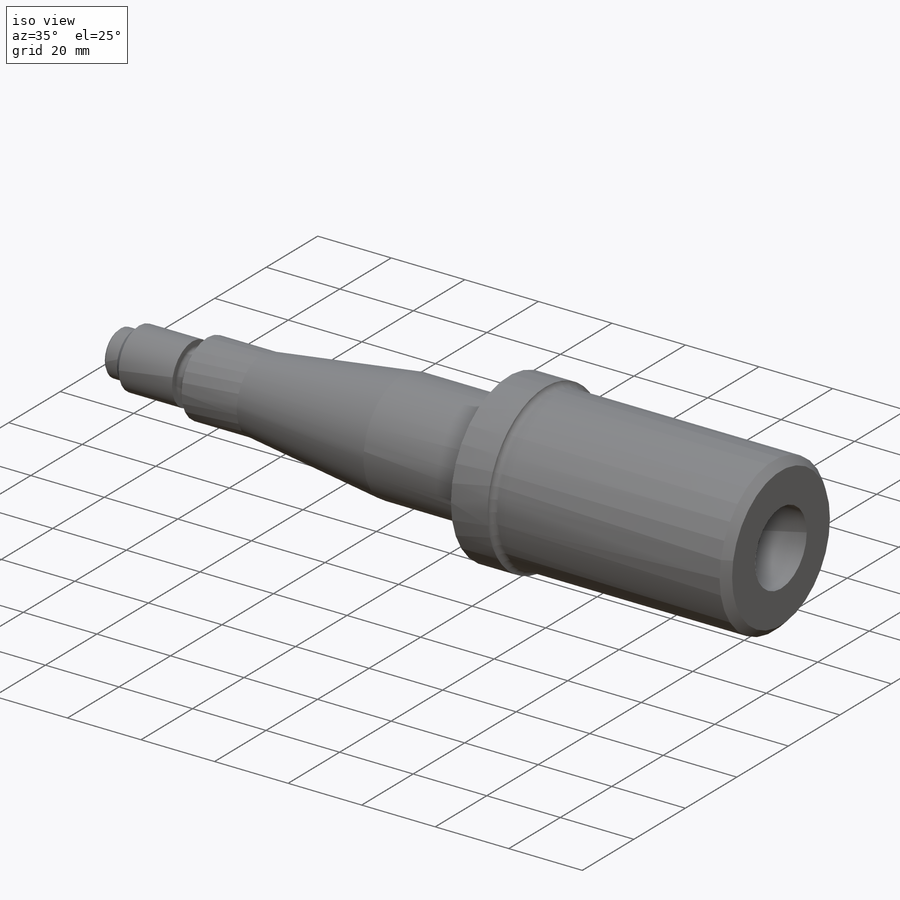
[diagram: iso view]
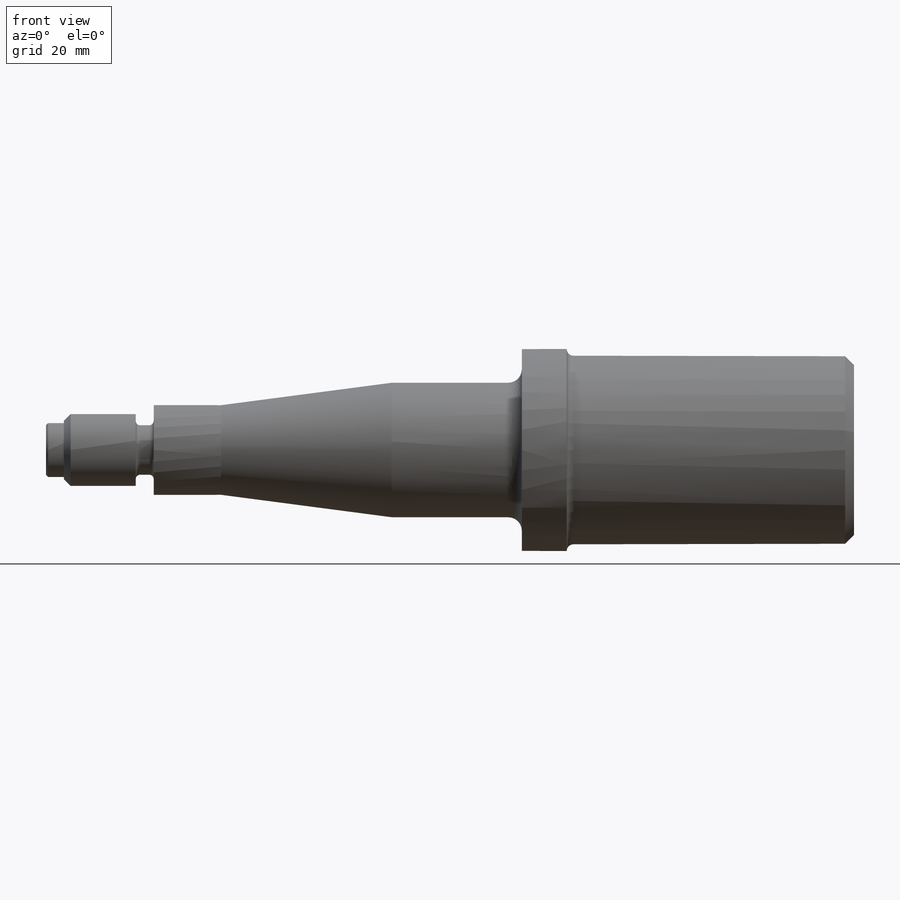
[diagram: front view]
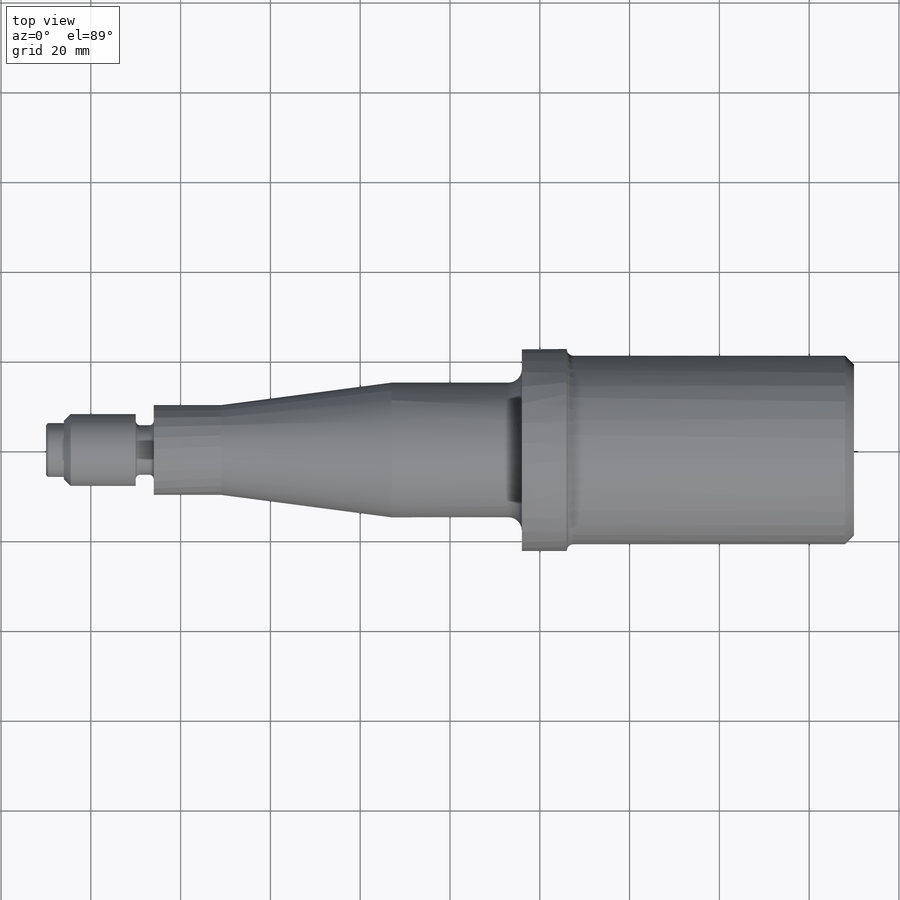
[diagram: top view]
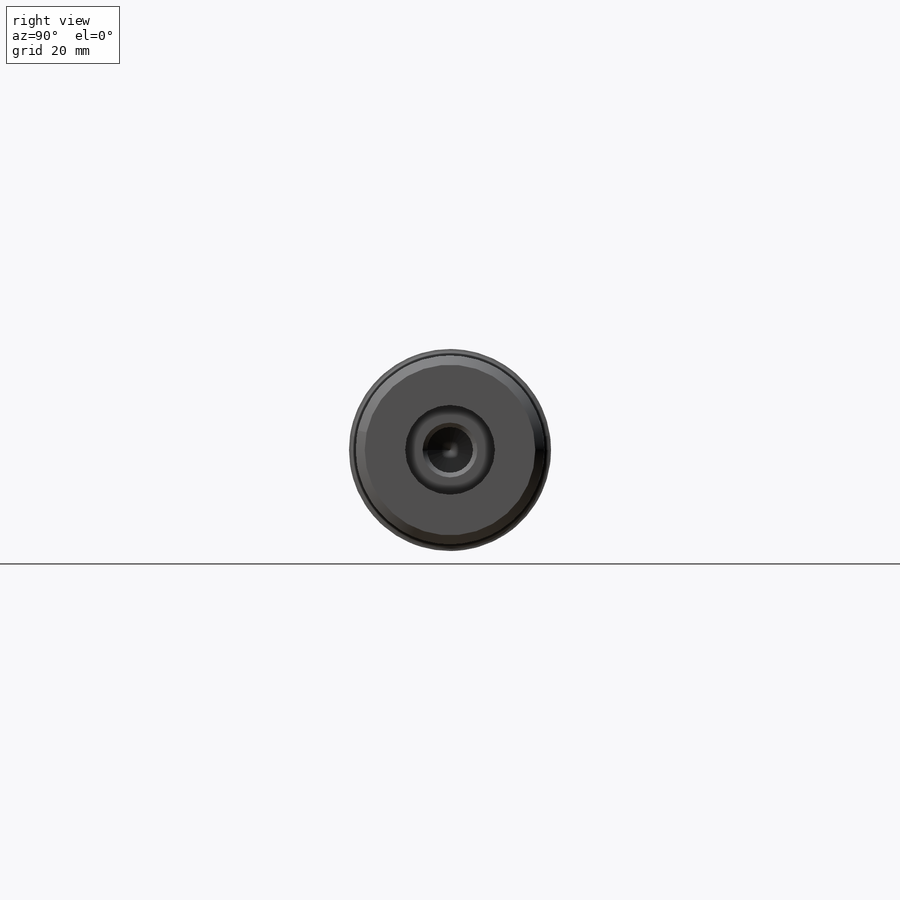
[diagram: right view]
SOLIDWORKS PART (.sldprt)
format: sldprt  version: not decoded by parser v0  size: 337,408 bytes
history: native  units: mm
features: sketch x4, plane x3, chamfer x3, fillet x3, thread x2, material x1, revolve x1, cut_extrude x1, hole x1 (+10 scaffold rows collapsed)
feature tree (29):
  scaffold x10  (default folders/planes/origin — collapsed)
  material  "9SMn28+CR"
  plane  "Ebene vorne"
  plane  "Ebene oben"
  plane  "Ebene rechts"
  sketch  "Skizze1"  dims[c1.D1=6.0mm c1.D2=8.0mm c1.D3=5.5mm c1.D4=10.0mm c1.D5=15.0mm c1.D6=22.5mm c1.D7=21.0mm c1.D8=64.0mm c1.D9=180.0mm c1.D10=106.0mm c1.D11=4.0mm c1.D12=4.0mm c1.D13=24.0mm c1.D14=39.0mm c1.D15=~53.986438mm c2.D15=7.5deg]
  revolve  "Rotation1"  [1 undecoded]
  thread  "Gewindedarstellung1"  Diameter=13.797mm  [1 undecoded]
  sketch  "Skizze5"  dims[D1=20.0mm]
  cut_extrude  "Schnitt-Linear austragen1"  Depth=12mm
  hole  "M12 Gewindebohrung1"  Diameter=10.2mm Depth=32mm
  sketch  "Skizze4"
  sketch  "Skizze3"  dims[hole-wizard template sketch: 39 standard entries collapsed; hole parameters kept: c13.Bohrerdurchmesser=10.2mm c13.Bohrungstiefe=32.0mm c13.Senkdurchmesser (Oben)=12.2mm c13.D4=~33.297463mm c13.Senkwinkel (Oben)=90.0deg c14.D5=~14.816244mm c14.Spitzenwinkel=118.0deg]
  thread  "Bohrungsgewinde1"  Diameter=26mm  [1 undecoded]
  chamfer  "Fase1"  Distance=0.5mm Angle=45deg
  chamfer  "Fase2"  Distance=1.5mm Angle=45deg
  fillet  "Verrundung1"  Radius=3mm
  fillet  "Verrundung2"  Radius=1.5mm
  fillet  "Verrundung3"  Radius=1mm
  chamfer  "Fase3"  Distance=2mm Angle=45deg
decode coverage: 13 of 15 modeling features carry decoded parameters
note: ~ marks probable driven/reference dimensions
note: 3 parameter values undecoded
note: suppression state not decoded; provenance and decode notes live in map.json
